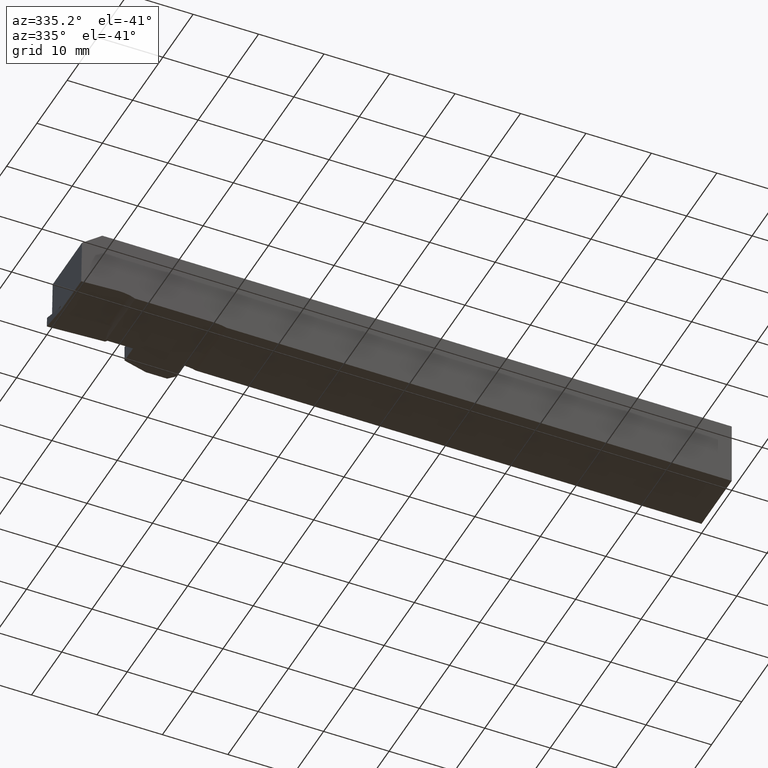
[diagram: clean part render]
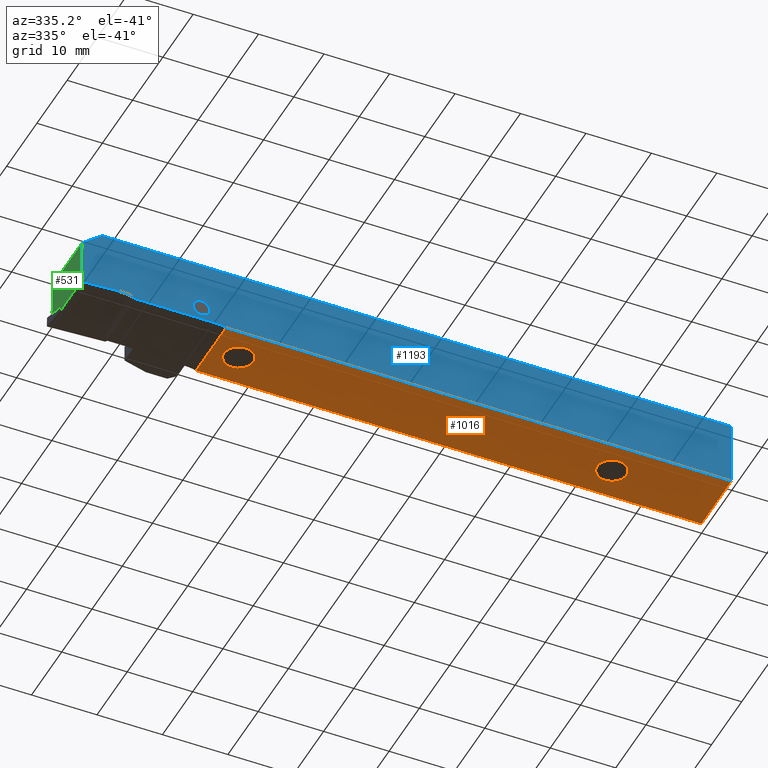
[diagram: same view with three faces highlighted in distinct colors, each labeled with its STEP entity id]
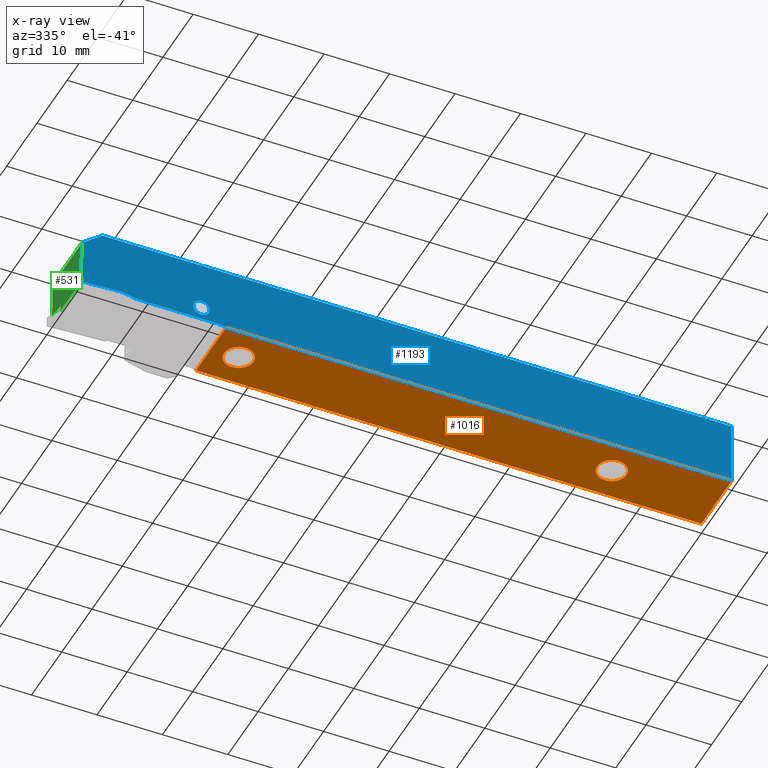
[diagram: x-ray of the same camera — body ghosted, the three highlighted faces saturated]
A machine part, auxiliary view with three faces highlighted in distinct colors.
The next image is the same camera in x-ray (body ghosted, the three faces saturated) — at least one of them is partly hidden behind the body in this view.
Their STEP definitions:

[orange] entity #1016 — the highlighted planar face has unit normal (0, 0, -1).
#27 = DIRECTION ( 'NONE',  ( -1.000000000000000000, 0.0000000000000000000, 0.0000000000000000000 ) ) ;
#28 = ORIENTED_EDGE ( 'NONE', *, *, #1286, .F. ) ;
#36 = DIRECTION ( 'NONE',  ( 0.0000000000000000000, 1.000000000000000000, 0.0000000000000000000 ) ) ;
#58 = AXIS2_PLACEMENT_3D ( 'NONE', #700, #1820, #865 ) ;
#161 = VECTOR ( 'NONE', #1138, 1000.000000000000000 ) ;
#181 = DIRECTION ( 'NONE',  ( -1.000000000000000000, 0.0000000000000000000, 0.0000000000000000000 ) ) ;
#196 = VERTEX_POINT ( 'NONE', #384 ) ;
#225 = ORIENTED_EDGE ( 'NONE', *, *, #1267, .F. ) ;
#275 = CARTESIAN_POINT ( 'NONE',  ( 22.78119326666009000, 0.0000000000000000000, -19.99999999999996100 ) ) ;
#279 = LINE ( 'NONE', #1940, #161 ) ;
#297 = LINE ( 'NONE', #910, #1146 ) ;
#307 = DIRECTION ( 'NONE',  ( 1.000000000000000000, 0.0000000000000000000, 0.0000000000000000000 ) ) ;
#325 = EDGE_CURVE ( 'NONE', #424, #196, #297, .T. ) ;
#344 = CARTESIAN_POINT ( 'NONE',  ( 84.00000000000000000, -5.000000000000008900, -19.99999999999996100 ) ) ;
#346 = DIRECTION ( 'NONE',  ( 0.0000000000000000000, 0.0000000000000000000, -1.000000000000000000 ) ) ;
#375 = CARTESIAN_POINT ( 'NONE',  ( 81.75000000000000000, -5.000000000000008900, -19.99999999999996100 ) ) ;
#384 = CARTESIAN_POINT ( 'NONE',  ( 100.0000000000000000, -10.00000000000000000, -19.99999999999996100 ) ) ;
#424 = VERTEX_POINT ( 'NONE', #640 ) ;
#461 = EDGE_CURVE ( 'NONE', #1330, #1165, #1824, .T. ) ;
#494 = ORIENTED_EDGE ( 'NONE', *, *, #1827, .T. ) ;
#503 = ORIENTED_EDGE ( 'NONE', *, *, #1803, .F. ) ;
#536 = CIRCLE ( 'NONE', #58, 2.250000000000001800 ) ;
#580 = AXIS2_PLACEMENT_3D ( 'NONE', #1719, #1270, #307 ) ;
#640 = CARTESIAN_POINT ( 'NONE',  ( 22.78119326666009000, -10.00000000000000900, -19.99999999999996100 ) ) ;
#645 = FACE_BOUND ( 'NONE', #1534, .T. ) ;
#662 = CARTESIAN_POINT ( 'NONE',  ( 24.75000000000000400, -5.000000000000008900, -19.99999999999996100 ) ) ;
#700 = CARTESIAN_POINT ( 'NONE',  ( 84.00000000000000000, -5.000000000000008900, -19.99999999999996100 ) ) ;
#740 = EDGE_CURVE ( 'NONE', #2048, #1282, #536, .T. ) ;
#812 = CARTESIAN_POINT ( 'NONE',  ( 100.0000000000000000, 0.0000000000000000000, -19.99999999999996100 ) ) ;
#865 = DIRECTION ( 'NONE',  ( -1.000000000000000000, 0.0000000000000000000, 0.0000000000000000000 ) ) ;
#906 = CARTESIAN_POINT ( 'NONE',  ( 86.25000000000001400, -5.000000000000008900, -19.99999999999996100 ) ) ;
#910 = CARTESIAN_POINT ( 'NONE',  ( 0.0000000000000000000, -10.00000000000000000, -19.99999999999996100 ) ) ;
#980 = DIRECTION ( 'NONE',  ( 0.0000000000000000000, 0.0000000000000000000, -1.000000000000000000 ) ) ;
#1016 = ADVANCED_FACE ( 'NONE', ( #1894, #645, #1088 ), #2040, .T. ) ;
#1074 = DIRECTION ( 'NONE',  ( 1.000000000000000000, 0.0000000000000000000, 0.0000000000000000000 ) ) ;
#1075 = EDGE_LOOP ( 'NONE', ( #1253, #494, #225, #1859 ) ) ;
#1088 = FACE_OUTER_BOUND ( 'NONE', #1075, .T. ) ;
#1138 = DIRECTION ( 'NONE',  ( 1.000000000000000000, 0.0000000000000000000, 0.0000000000000000000 ) ) ;
#1146 = VECTOR ( 'NONE', #1074, 1000.000000000000000 ) ;
#1165 = VERTEX_POINT ( 'NONE', #1644 ) ;
#1186 = ORIENTED_EDGE ( 'NONE', *, *, #740, .F. ) ;
#1194 = AXIS2_PLACEMENT_3D ( 'NONE', #1215, #346, #1465 ) ;
#1210 = AXIS2_PLACEMENT_3D ( 'NONE', #1941, #980, #27 ) ;
#1215 = CARTESIAN_POINT ( 'NONE',  ( 27.00000000000000400, -5.000000000000008900, -19.99999999999996100 ) ) ;
#1222 = AXIS2_PLACEMENT_3D ( 'NONE', #344, #1307, #181 ) ;
#1230 = LINE ( 'NONE', #1942, #1750 ) ;
#1238 = DIRECTION ( 'NONE',  ( 0.0000000000000000000, -1.000000000000000000, 0.0000000000000000000 ) ) ;
#1250 = VECTOR ( 'NONE', #1238, 1000.000000000000000 ) ;
#1253 = ORIENTED_EDGE ( 'NONE', *, *, #1659, .F. ) ;
#1266 = VERTEX_POINT ( 'NONE', #812 ) ;
#1267 = EDGE_CURVE ( 'NONE', #196, #1266, #1230, .T. ) ;
#1270 = DIRECTION ( 'NONE',  ( 0.0000000000000000000, 0.0000000000000000000, -1.000000000000000000 ) ) ;
#1281 = CIRCLE ( 'NONE', #1194, 2.249999999999998700 ) ;
#1282 = VERTEX_POINT ( 'NONE', #375 ) ;
#1286 = EDGE_CURVE ( 'NONE', #1165, #1330, #1281, .T. ) ;
#1307 = DIRECTION ( 'NONE',  ( 0.0000000000000000000, 0.0000000000000000000, -1.000000000000000000 ) ) ;
#1330 = VERTEX_POINT ( 'NONE', #662 ) ;
#1465 = DIRECTION ( 'NONE',  ( -1.000000000000000000, 0.0000000000000000000, 0.0000000000000000000 ) ) ;
#1534 = EDGE_LOOP ( 'NONE', ( #1914, #28 ) ) ;
#1644 = CARTESIAN_POINT ( 'NONE',  ( 29.25000000000000000, -5.000000000000008900, -19.99999999999996100 ) ) ;
#1659 = EDGE_CURVE ( 'NONE', #1666, #424, #2000, .T. ) ;
#1666 = VERTEX_POINT ( 'NONE', #275 ) ;
#1719 = CARTESIAN_POINT ( 'NONE',  ( 0.0000000000000000000, -10.00000000000000000, -19.99999999999996100 ) ) ;
#1750 = VECTOR ( 'NONE', #36, 1000.000000000000000 ) ;
#1803 = EDGE_CURVE ( 'NONE', #1282, #2048, #1879, .T. ) ;
#1820 = DIRECTION ( 'NONE',  ( 0.0000000000000000000, 0.0000000000000000000, -1.000000000000000000 ) ) ;
#1824 = CIRCLE ( 'NONE', #1210, 2.249999999999998700 ) ;
#1827 = EDGE_CURVE ( 'NONE', #1666, #1266, #279, .T. ) ;
#1859 = ORIENTED_EDGE ( 'NONE', *, *, #325, .F. ) ;
#1879 = CIRCLE ( 'NONE', #1222, 2.250000000000001800 ) ;
#1884 = CARTESIAN_POINT ( 'NONE',  ( 22.78119326666065100, 128.8673117295259700, -20.00000000000013500 ) ) ;
#1894 = FACE_BOUND ( 'NONE', #2036, .T. ) ;
#1914 = ORIENTED_EDGE ( 'NONE', *, *, #461, .F. ) ;
#1940 = CARTESIAN_POINT ( 'NONE',  ( 0.0000000000000000000, 0.0000000000000000000, -19.99999999999996100 ) ) ;
#1941 = CARTESIAN_POINT ( 'NONE',  ( 27.00000000000000400, -5.000000000000008900, -19.99999999999996100 ) ) ;
#1942 = CARTESIAN_POINT ( 'NONE',  ( 100.0000000000000000, -10.00000000000000000, -19.99999999999996100 ) ) ;
#2000 = LINE ( 'NONE', #1884, #1250 ) ;
#2036 = EDGE_LOOP ( 'NONE', ( #503, #1186 ) ) ;
#2040 = PLANE ( 'NONE',  #580 ) ;
#2048 = VERTEX_POINT ( 'NONE', #906 ) ;

[blue] entity #1193 — the highlighted planar face has unit normal (0, -1, 0).
#3 = DIRECTION ( 'NONE',  ( -0.0000000000000000000, 1.000000000000000000, -0.0000000000000000000 ) ) ;
#32 = ORIENTED_EDGE ( 'NONE', *, *, #1031, .T. ) ;
#100 = CIRCLE ( 'NONE', #1089, 6.099999999999821100 ) ;
#104 = PLANE ( 'NONE',  #227 ) ;
#105 = DIRECTION ( 'NONE',  ( 0.0000000000000000000, 0.0000000000000000000, 1.000000000000000000 ) ) ;
#108 = VERTEX_POINT ( 'NONE', #299 ) ;
#164 = VERTEX_POINT ( 'NONE', #598 ) ;
#196 = VERTEX_POINT ( 'NONE', #384 ) ;
#227 = AXIS2_PLACEMENT_3D ( 'NONE', #1718, #2022, #1066 ) ;
#297 = LINE ( 'NONE', #910, #1146 ) ;
#299 = CARTESIAN_POINT ( 'NONE',  ( 6.184543100052086300, -10.00000000000000000, -19.25690415980310600 ) ) ;
#325 = EDGE_CURVE ( 'NONE', #424, #196, #297, .T. ) ;
#337 = CARTESIAN_POINT ( 'NONE',  ( 19.00000000000000400, -10.00000000000000000, -17.73415379869312100 ) ) ;
#355 = VERTEX_POINT ( 'NONE', #2033 ) ;
#384 = CARTESIAN_POINT ( 'NONE',  ( 100.0000000000000000, -10.00000000000000000, -19.99999999999996100 ) ) ;
#400 = VERTEX_POINT ( 'NONE', #860 ) ;
#424 = VERTEX_POINT ( 'NONE', #640 ) ;
#435 = CIRCLE ( 'NONE', #1021, 1.250000000000001100 ) ;
#451 = FACE_OUTER_BOUND ( 'NONE', #799, .T. ) ;
#462 = EDGE_CURVE ( 'NONE', #164, #557, #2003, .T. ) ;
#472 = CARTESIAN_POINT ( 'NONE',  ( 0.0000000000000000000, -10.00000000000000000, -19.73415379869320300 ) ) ;
#477 = DIRECTION ( 'NONE',  ( 0.9986295347545736100, 0.0000000000000000000, 0.05233595624294801900 ) ) ;
#502 = EDGE_CURVE ( 'NONE', #1408, #400, #1499, .T. ) ;
#522 = DIRECTION ( 'NONE',  ( 0.0000000000000000000, 0.0000000000000000000, 1.000000000000000000 ) ) ;
#557 = VERTEX_POINT ( 'NONE', #1486 ) ;
#591 = VECTOR ( 'NONE', #664, 1000.000000000000100 ) ;
#598 = CARTESIAN_POINT ( 'NONE',  ( 19.00000000000000400, -10.00000000000000000, -18.98415379869312100 ) ) ;
#639 = CARTESIAN_POINT ( 'NONE',  ( 21.00000000000000000, -10.00000000000000000, -19.73415379869320300 ) ) ;
#640 = CARTESIAN_POINT ( 'NONE',  ( 22.78119326666009000, -10.00000000000000900, -19.99999999999996100 ) ) ;
#652 = VERTEX_POINT ( 'NONE', #756 ) ;
#656 = DIRECTION ( 'NONE',  ( -0.0000000000000000000, 1.000000000000000000, -0.0000000000000000000 ) ) ;
#657 = CARTESIAN_POINT ( 'NONE',  ( 0.6215251886298306400, -10.00000000000000000, -20.01084876252127400 ) ) ;
#658 = ORIENTED_EDGE ( 'NONE', *, *, #1872, .T. ) ;
#664 = DIRECTION ( 'NONE',  ( -0.01745240643608431500, 0.0000000000000000000, -0.9998476951564121400 ) ) ;
#684 = CARTESIAN_POINT ( 'NONE',  ( 19.00000000000000400, -10.00000000000000000, -17.73415379869312100 ) ) ;
#687 = CARTESIAN_POINT ( 'NONE',  ( 0.0000000000000000000, -10.00000000000000000, -9.999999999999962700 ) ) ;
#694 = AXIS2_PLACEMENT_3D ( 'NONE', #957, #3, #1111 ) ;
#756 = CARTESIAN_POINT ( 'NONE',  ( 0.6296037866257683200, -10.00000000000000000, -19.54802619327186600 ) ) ;
#786 = ORIENTED_EDGE ( 'NONE', *, *, #502, .T. ) ;
#799 = EDGE_LOOP ( 'NONE', ( #969, #1038, #1200, #786, #1372, #1301, #658, #1774, #32, #1212 ) ) ;
#803 = CIRCLE ( 'NONE', #694, 6.099999999999803400 ) ;
#822 = DIRECTION ( 'NONE',  ( 0.0000000000000000000, 0.0000000000000000000, 1.000000000000000000 ) ) ;
#845 = DIRECTION ( 'NONE',  ( -1.000000000000000000, -0.0000000000000000000, 0.0000000000000000000 ) ) ;
#860 = CARTESIAN_POINT ( 'NONE',  ( 3.860172349924908100, -10.00000000000000000, -9.999999999999960900 ) ) ;
#910 = CARTESIAN_POINT ( 'NONE',  ( 0.0000000000000000000, -10.00000000000000000, -19.99999999999996100 ) ) ;
#939 = EDGE_CURVE ( 'NONE', #355, #652, #1769, .T. ) ;
#957 = CARTESIAN_POINT ( 'NONE',  ( 6.503792433134058200, -10.00000000000000900, -25.34854432180600600 ) ) ;
#969 = ORIENTED_EDGE ( 'NONE', *, *, #1265, .T. ) ;
#971 = EDGE_CURVE ( 'NONE', #108, #1436, #1036, .T. ) ;
#972 = ORIENTED_EDGE ( 'NONE', *, *, #1081, .T. ) ;
#1021 = AXIS2_PLACEMENT_3D ( 'NONE', #684, #1807, #1971 ) ;
#1031 = EDGE_CURVE ( 'NONE', #1436, #1630, #803, .T. ) ;
#1034 = CARTESIAN_POINT ( 'NONE',  ( 6.503792433134058200, -10.00000000000000900, -19.24854432180620400 ) ) ;
#1036 = CIRCLE ( 'NONE', #2029, 6.099999999999803400 ) ;
#1038 = ORIENTED_EDGE ( 'NONE', *, *, #325, .T. ) ;
#1066 = DIRECTION ( 'NONE',  ( 0.0000000000000000000, 0.0000000000000000000, 1.000000000000000000 ) ) ;
#1067 = DIRECTION ( 'NONE',  ( -0.0000000000000000000, 1.000000000000000000, -0.0000000000000000000 ) ) ;
#1074 = DIRECTION ( 'NONE',  ( 1.000000000000000000, 0.0000000000000000000, 0.0000000000000000000 ) ) ;
#1081 = EDGE_CURVE ( 'NONE', #557, #164, #435, .T. ) ;
#1089 = AXIS2_PLACEMENT_3D ( 'NONE', #1622, #656, #822 ) ;
#1102 = VECTOR ( 'NONE', #477, 1000.000000000000100 ) ;
#1107 = EDGE_LOOP ( 'NONE', ( #1574, #972 ) ) ;
#1111 = DIRECTION ( 'NONE',  ( 0.0000000000000000000, 0.0000000000000000000, 1.000000000000000000 ) ) ;
#1122 = EDGE_CURVE ( 'NONE', #196, #1408, #1532, .T. ) ;
#1124 = VECTOR ( 'NONE', #845, 1000.000000000000000 ) ;
#1141 = LINE ( 'NONE', #472, #1300 ) ;
#1146 = VECTOR ( 'NONE', #1074, 1000.000000000000000 ) ;
#1167 = LINE ( 'NONE', #1539, #1464 ) ;
#1193 = ADVANCED_FACE ( 'NONE', ( #1262, #451 ), #104, .T. ) ;
#1200 = ORIENTED_EDGE ( 'NONE', *, *, #1122, .T. ) ;
#1212 = ORIENTED_EDGE ( 'NONE', *, *, #1916, .T. ) ;
#1262 = FACE_BOUND ( 'NONE', #1107, .T. ) ;
#1265 = EDGE_CURVE ( 'NONE', #1868, #424, #100, .T. ) ;
#1300 = VECTOR ( 'NONE', #1950, 1000.000000000000000 ) ;
#1301 = ORIENTED_EDGE ( 'NONE', *, *, #939, .T. ) ;
#1372 = ORIENTED_EDGE ( 'NONE', *, *, #1700, .T. ) ;
#1389 = DIRECTION ( 'NONE',  ( -0.7880107536067200200, 0.0000000000000000000, -0.6156614753256607300 ) ) ;
#1408 = VERTEX_POINT ( 'NONE', #1829 ) ;
#1428 = AXIS2_PLACEMENT_3D ( 'NONE', #337, #1459, #1620 ) ;
#1436 = VERTEX_POINT ( 'NONE', #1034 ) ;
#1459 = DIRECTION ( 'NONE',  ( -0.0000000000000000000, 1.000000000000000000, -0.0000000000000000000 ) ) ;
#1464 = VECTOR ( 'NONE', #1389, 1000.000000000000100 ) ;
#1486 = CARTESIAN_POINT ( 'NONE',  ( 19.00000000000000400, -10.00000000000000000, -16.48415379869312100 ) ) ;
#1499 = LINE ( 'NONE', #687, #1124 ) ;
#1532 = LINE ( 'NONE', #1815, #2011 ) ;
#1539 = CARTESIAN_POINT ( 'NONE',  ( -3.388322562535153600, -10.00000000000000000, -15.66314488891211100 ) ) ;
#1574 = ORIENTED_EDGE ( 'NONE', *, *, #462, .T. ) ;
#1607 = CARTESIAN_POINT ( 'NONE',  ( -0.02189754601742764300, -10.00000000000000000, -19.58216993131564000 ) ) ;
#1620 = DIRECTION ( 'NONE',  ( 0.0000000000000000000, 0.0000000000000000000, -1.000000000000000000 ) ) ;
#1622 = CARTESIAN_POINT ( 'NONE',  ( 21.00000000000000000, -10.00000000000000900, -25.83415379869284200 ) ) ;
#1630 = VERTEX_POINT ( 'NONE', #2050 ) ;
#1700 = EDGE_CURVE ( 'NONE', #400, #355, #1167, .T. ) ;
#1718 = CARTESIAN_POINT ( 'NONE',  ( 0.0000000000000000000, -10.00000000000000000, -19.99999999999996100 ) ) ;
#1769 = LINE ( 'NONE', #657, #591 ) ;
#1774 = ORIENTED_EDGE ( 'NONE', *, *, #971, .T. ) ;
#1807 = DIRECTION ( 'NONE',  ( -0.0000000000000000000, 1.000000000000000000, -0.0000000000000000000 ) ) ;
#1815 = CARTESIAN_POINT ( 'NONE',  ( 100.0000000000000000, -10.00000000000000000, -19.99999999999996100 ) ) ;
#1829 = CARTESIAN_POINT ( 'NONE',  ( 100.0000000000000000, -10.00000000000000000, -9.999999999999962700 ) ) ;
#1868 = VERTEX_POINT ( 'NONE', #639 ) ;
#1872 = EDGE_CURVE ( 'NONE', #652, #108, #1903, .T. ) ;
#1903 = LINE ( 'NONE', #1607, #1102 ) ;
#1916 = EDGE_CURVE ( 'NONE', #1630, #1868, #1141, .T. ) ;
#1950 = DIRECTION ( 'NONE',  ( 1.000000000000000000, 0.0000000000000000000, 0.0000000000000000000 ) ) ;
#1971 = DIRECTION ( 'NONE',  ( 0.0000000000000000000, 0.0000000000000000000, -1.000000000000000000 ) ) ;
#2003 = CIRCLE ( 'NONE', #1428, 1.250000000000001100 ) ;
#2011 = VECTOR ( 'NONE', #522, 1000.000000000000000 ) ;
#2022 = DIRECTION ( 'NONE',  ( 0.0000000000000000000, -1.000000000000000000, 0.0000000000000000000 ) ) ;
#2023 = CARTESIAN_POINT ( 'NONE',  ( 6.503792433134058200, -10.00000000000000900, -25.34854432180600600 ) ) ;
#2029 = AXIS2_PLACEMENT_3D ( 'NONE', #2023, #1067, #105 ) ;
#2033 = CARTESIAN_POINT ( 'NONE',  ( 0.7539038039948488000, -10.00000000000000000, -12.42688296700505300 ) ) ;
#2050 = CARTESIAN_POINT ( 'NONE',  ( 8.888875042599975600, -10.00000000000000900, -19.73415379869302600 ) ) ;

[green] entity #531 — the highlighted planar face has unit normal (0.9998, 0, -0.0175).
#5 = VERTEX_POINT ( 'NONE', #364 ) ;
#8 = FACE_OUTER_BOUND ( 'NONE', #1246, .T. ) ;
#34 = DIRECTION ( 'NONE',  ( 0.0000000000000000000, -1.000000000000000000, 0.0000000000000000000 ) ) ;
#56 = CARTESIAN_POINT ( 'NONE',  ( 0.6547200739436895800, 0.0000000000000000000, -18.10911505642212700 ) ) ;
#98 = LINE ( 'NONE', #750, #242 ) ;
#102 = EDGE_CURVE ( 'NONE', #1235, #1933, #162, .T. ) ;
#110 = EDGE_CURVE ( 'NONE', #749, #1013, #1881, .T. ) ;
#162 = LINE ( 'NONE', #1739, #1406 ) ;
#191 = CARTESIAN_POINT ( 'NONE',  ( 0.6547200739436895800, -0.2999999999999999900, -18.10911505642212700 ) ) ;
#242 = VECTOR ( 'NONE', #1921, 1000.000000000000100 ) ;
#258 = VERTEX_POINT ( 'NONE', #1379 ) ;
#342 = VECTOR ( 'NONE', #434, 1000.000000000000200 ) ;
#355 = VERTEX_POINT ( 'NONE', #2033 ) ;
#360 = EDGE_CURVE ( 'NONE', #1933, #5, #1523, .T. ) ;
#364 = CARTESIAN_POINT ( 'NONE',  ( 0.6455583743397167500, -2.098800000000094800, -18.63398847524219400 ) ) ;
#367 = EDGE_CURVE ( 'NONE', #989, #355, #697, .T. ) ;
#433 = CARTESIAN_POINT ( 'NONE',  ( 0.6408387109073641100, -3.180000000000000200, -18.90437781221054800 ) ) ;
#434 = DIRECTION ( 'NONE',  ( -0.004234753973306032900, -0.9701149375509984200, -0.2426088926630839700 ) ) ;
#438 = CARTESIAN_POINT ( 'NONE',  ( 0.7539038039948489100, 128.8673117295259700, -12.42688296700504900 ) ) ;
#445 = CARTESIAN_POINT ( 'NONE',  ( 0.6455583743397107500, -3.180000000000000200, -18.63398847524268100 ) ) ;
#504 = DIRECTION ( 'NONE',  ( 0.0000000000000000000, -1.000000000000000000, 0.0000000000000000000 ) ) ;
#531 = ADVANCED_FACE ( 'NONE', ( #8 ), #1325, .F. ) ;
#545 = VECTOR ( 'NONE', #504, 1000.000000000000000 ) ;
#551 = ORIENTED_EDGE ( 'NONE', *, *, #102, .T. ) ;
#591 = VECTOR ( 'NONE', #664, 1000.000000000000100 ) ;
#607 = EDGE_CURVE ( 'NONE', #1013, #258, #98, .T. ) ;
#608 = CARTESIAN_POINT ( 'NONE',  ( 0.7350931297763831900, -3.180000000000000200, -13.50454577130377100 ) ) ;
#652 = VERTEX_POINT ( 'NONE', #756 ) ;
#657 = CARTESIAN_POINT ( 'NONE',  ( 0.6215251886298306400, -10.00000000000000000, -20.01084876252127400 ) ) ;
#664 = DIRECTION ( 'NONE',  ( -0.01745240643608431500, 0.0000000000000000000, -0.9998476951564121400 ) ) ;
#676 = DIRECTION ( 'NONE',  ( 0.9998476951564121400, 0.0000000000000000000, -0.01745240643608431500 ) ) ;
#690 = CARTESIAN_POINT ( 'NONE',  ( 0.6296037866249902800, -3.180000000000619200, -19.54802619327221800 ) ) ;
#697 = LINE ( 'NONE', #438, #1468 ) ;
#701 = ORIENTED_EDGE ( 'NONE', *, *, #607, .F. ) ;
#722 = ORIENTED_EDGE ( 'NONE', *, *, #2038, .T. ) ;
#742 = DIRECTION ( 'NONE',  ( -0.01745240643608417600, 0.0000000000000000000, -0.9998476951564122500 ) ) ;
#749 = VERTEX_POINT ( 'NONE', #690 ) ;
#750 = CARTESIAN_POINT ( 'NONE',  ( 0.7350931297763831900, -3.180000000000000200, -13.50454577130377100 ) ) ;
#756 = CARTESIAN_POINT ( 'NONE',  ( 0.6296037866257683200, -10.00000000000000000, -19.54802619327186600 ) ) ;
#779 = DIRECTION ( 'NONE',  ( 0.0000000000000000000, 1.000000000000000000, 0.0000000000000000000 ) ) ;
#893 = ORIENTED_EDGE ( 'NONE', *, *, #1605, .T. ) ;
#930 = EDGE_CURVE ( 'NONE', #749, #652, #1837, .T. ) ;
#939 = EDGE_CURVE ( 'NONE', #355, #652, #1769, .T. ) ;
#989 = VERTEX_POINT ( 'NONE', #1226 ) ;
#1013 = VERTEX_POINT ( 'NONE', #433 ) ;
#1076 = VECTOR ( 'NONE', #1105, 1000.000000000000100 ) ;
#1105 = DIRECTION ( 'NONE',  ( 0.01745240643608431500, 0.0000000000000000000, 0.9998476951564121400 ) ) ;
#1135 = ORIENTED_EDGE ( 'NONE', *, *, #930, .T. ) ;
#1226 = CARTESIAN_POINT ( 'NONE',  ( 0.7539038039948454700, -0.2999999999999973200, -12.42688296700506000 ) ) ;
#1235 = VERTEX_POINT ( 'NONE', #191 ) ;
#1246 = EDGE_LOOP ( 'NONE', ( #1515, #893, #701, #1612, #1135, #1897, #1955, #722, #551 ) ) ;
#1248 = VECTOR ( 'NONE', #1416, 1000.000000000000000 ) ;
#1312 = CARTESIAN_POINT ( 'NONE',  ( 0.6296037866257683200, 128.8673117295259700, -19.54802619327186600 ) ) ;
#1320 = AXIS2_PLACEMENT_3D ( 'NONE', #1478, #676, #1802 ) ;
#1325 = PLANE ( 'NONE',  #1320 ) ;
#1379 = CARTESIAN_POINT ( 'NONE',  ( 0.6455583743397116400, -3.180000000000000200, -18.63398847524268100 ) ) ;
#1401 = CARTESIAN_POINT ( 'NONE',  ( 0.6595637008993855400, 1.109598076125392500, -17.83162385395755600 ) ) ;
#1406 = VECTOR ( 'NONE', #779, 1000.000000000000000 ) ;
#1416 = DIRECTION ( 'NONE',  ( 0.0000000000000000000, -1.000000000000000000, 0.0000000000000000000 ) ) ;
#1468 = VECTOR ( 'NONE', #34, 1000.000000000000000 ) ;
#1478 = CARTESIAN_POINT ( 'NONE',  ( 0.7539038039948489100, 128.8673117295259700, -12.42688296700504900 ) ) ;
#1515 = ORIENTED_EDGE ( 'NONE', *, *, #360, .T. ) ;
#1523 = LINE ( 'NONE', #1401, #342 ) ;
#1543 = CARTESIAN_POINT ( 'NONE',  ( 0.7962652037541949600, -0.2999999999999999900, -9.999999999999982200 ) ) ;
#1605 = EDGE_CURVE ( 'NONE', #5, #258, #1997, .T. ) ;
#1612 = ORIENTED_EDGE ( 'NONE', *, *, #110, .F. ) ;
#1676 = LINE ( 'NONE', #1543, #1745 ) ;
#1739 = CARTESIAN_POINT ( 'NONE',  ( 0.6547200739436895800, -0.2999999999999999900, -18.10911505642212700 ) ) ;
#1745 = VECTOR ( 'NONE', #742, 999.9999999999998900 ) ;
#1769 = LINE ( 'NONE', #657, #591 ) ;
#1802 = DIRECTION ( 'NONE',  ( 0.01745240643608431500, 0.0000000000000000000, 0.9998476951564121400 ) ) ;
#1837 = LINE ( 'NONE', #1312, #545 ) ;
#1881 = LINE ( 'NONE', #608, #1076 ) ;
#1897 = ORIENTED_EDGE ( 'NONE', *, *, #939, .F. ) ;
#1921 = DIRECTION ( 'NONE',  ( 0.01745240643608431500, 0.0000000000000000000, 0.9998476951564121400 ) ) ;
#1933 = VERTEX_POINT ( 'NONE', #56 ) ;
#1955 = ORIENTED_EDGE ( 'NONE', *, *, #367, .F. ) ;
#1997 = LINE ( 'NONE', #445, #1248 ) ;
#2033 = CARTESIAN_POINT ( 'NONE',  ( 0.7539038039948488000, -10.00000000000000000, -12.42688296700505300 ) ) ;
#2038 = EDGE_CURVE ( 'NONE', #989, #1235, #1676, .T. ) ;